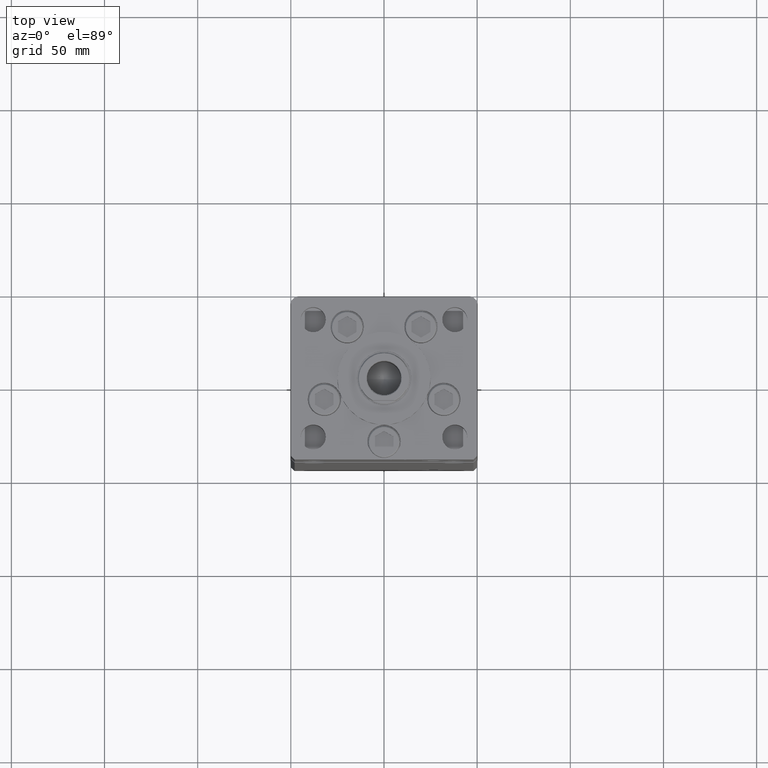
[diagram: clean part render]
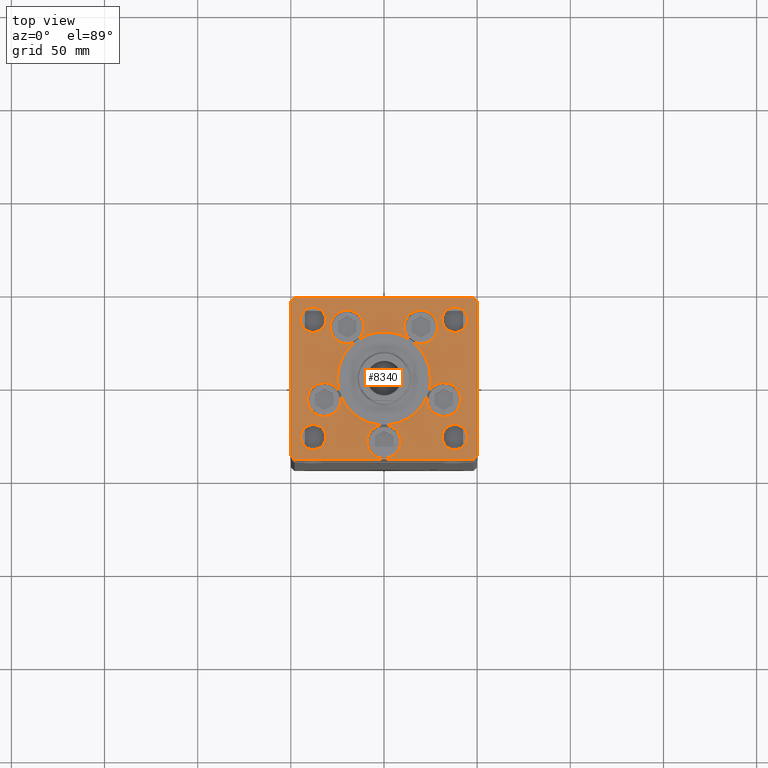
[diagram: same view with one face highlighted and labeled with its STEP entity id]
A machine part, top view. The second image highlights one B-rep face of the part: STEP entity #8340.
In plain terms, the highlighted planar face has unit normal (0, 0, 1).
Its self-contained STEP definition (entity closure, byte-faithful):
#100 = EDGE_LOOP ( 'NONE', ( #22653, #37898 ) ) ;
#194 = EDGE_CURVE ( 'NONE', #29613, #17015, #1800, .T. ) ;
#427 = DIRECTION ( 'NONE',  ( 0.000000000000000000, 0.000000000000000000, 1.000000000000000000 ) ) ;
#525 = EDGE_CURVE ( 'NONE', #50817, #51859, #46321, .T. ) ;
#607 = DIRECTION ( 'NONE',  ( 0.000000000000000000, 0.000000000000000000, 1.000000000000000000 ) ) ;
#753 = CARTESIAN_POINT ( 'NONE',  ( -44.75000000000000000, 31.50000000000000000, 0.000000000000000000 ) ) ;
#755 = EDGE_CURVE ( 'NONE', #39493, #41685, #6091, .T. ) ;
#782 = DIRECTION ( 'NONE',  ( 1.000000000000000000, 0.000000000000000000, 0.000000000000000000 ) ) ;
#893 = CARTESIAN_POINT ( 'NONE',  ( 0.000000000000000000, -6.938893903907228378E-15, 0.000000000000000000 ) ) ;
#1200 = VERTEX_POINT ( 'NONE', #1715 ) ;
#1289 = CARTESIAN_POINT ( 'NONE',  ( 19.82068048781374969, 27.62499999999998934, 0.000000000000000000 ) ) ;
#1462 = CARTESIAN_POINT ( 'NONE',  ( -23.57022603955158502, -8.333333333333332149, 0.000000000000000000 ) ) ;
#1715 = CARTESIAN_POINT ( 'NONE',  ( -44.75000000000000711, -31.50000000000000711, 0.000000000000000000 ) ) ;
#1771 = CARTESIAN_POINT ( 'NONE',  ( -19.82068048781374969, 27.62499999999998934, 0.000000000000000000 ) ) ;
#1800 = CIRCLE ( 'NONE', #12956, 9.000000000000000000 ) ;
#1877 = AXIS2_PLACEMENT_3D ( 'NONE', #42514, #607, #4920 ) ;
#1910 = CARTESIAN_POINT ( 'NONE',  ( -50.00000000000000711, 41.49999999999999289, 0.000000000000000000 ) ) ;
#2034 = VERTEX_POINT ( 'NONE', #1462 ) ;
#2136 = CIRCLE ( 'NONE', #32163, 9.000000000000001776 ) ;
#2151 = FACE_BOUND ( 'NONE', #42752, .T. ) ;
#2329 = EDGE_CURVE ( 'NONE', #22925, #51141, #14722, .T. ) ;
#2330 = CARTESIAN_POINT ( 'NONE',  ( 48.00000000000000711, -43.49999999999992184, 0.000000000000000000 ) ) ;
#2415 = EDGE_CURVE ( 'NONE', #18035, #39297, #30180, .T. ) ;
#2428 = DIRECTION ( 'NONE',  ( -0.000000000000000000, 0.000000000000000000, 1.000000000000000000 ) ) ;
#2433 = VERTEX_POINT ( 'NONE', #30940 ) ;
#2509 = CARTESIAN_POINT ( 'NONE',  ( 0.000000000000000000, -34.00000000000000000, 0.000000000000000000 ) ) ;
#2957 = DIRECTION ( 'NONE',  ( -0.000000000000000000, -0.000000000000000000, -1.000000000000000000 ) ) ;
#2990 = ORIENTED_EDGE ( 'NONE', *, *, #34412, .T. ) ;
#3020 = EDGE_CURVE ( 'NONE', #7996, #1200, #31076, .T. ) ;
#3104 = AXIS2_PLACEMENT_3D ( 'NONE', #32752, #4554, #782 ) ;
#3175 = DIRECTION ( 'NONE',  ( 1.000000000000000000, 0.000000000000000000, 0.000000000000000000 ) ) ;
#3185 = DIRECTION ( 'NONE',  ( 0.000000000000000000, 0.000000000000000000, 1.000000000000000000 ) ) ;
#3480 = CARTESIAN_POINT ( 'NONE',  ( -9.000000000000000000, -34.00000000000000000, 0.000000000000000000 ) ) ;
#3901 = CIRCLE ( 'NONE', #44228, 6.749999999999999112 ) ;
#3945 = DIRECTION ( 'NONE',  ( 1.000000000000000000, 0.000000000000000000, 0.000000000000000000 ) ) ;
#3974 = VERTEX_POINT ( 'NONE', #18096 ) ;
#4045 = VERTEX_POINT ( 'NONE', #39608 ) ;
#4207 = DIRECTION ( 'NONE',  ( 1.000000000000000000, 0.000000000000000000, 0.000000000000000000 ) ) ;
#4213 = CARTESIAN_POINT ( 'NONE',  ( 50.00000000000000000, 41.50000000000000711, 0.000000000000000000 ) ) ;
#4409 = VERTEX_POINT ( 'NONE', #753 ) ;
#4554 = DIRECTION ( 'NONE',  ( 0.000000000000000000, 0.000000000000000000, 1.000000000000000000 ) ) ;
#4718 = EDGE_CURVE ( 'NONE', #13623, #17992, #8780, .T. ) ;
#4781 = ORIENTED_EDGE ( 'NONE', *, *, #194, .F. ) ;
#4821 = DIRECTION ( 'NONE',  ( 0.7071067811865474617, 0.7071067811865474617, 0.000000000000000000 ) ) ;
#4920 = DIRECTION ( 'NONE',  ( 1.000000000000000000, 0.000000000000000000, 0.000000000000000000 ) ) ;
#5015 = CARTESIAN_POINT ( 'NONE',  ( -48.00000000000000000, 43.49999999999997158, 0.000000000000000000 ) ) ;
#5271 = CARTESIAN_POINT ( 'NONE',  ( -38.00000000000000000, 31.50000000000000000, 0.000000000000000000 ) ) ;
#5688 = ORIENTED_EDGE ( 'NONE', *, *, #14396, .T. ) ;
#5796 = EDGE_CURVE ( 'NONE', #12160, #44100, #47460, .T. ) ;
#6091 = CIRCLE ( 'NONE', #40436, 6.749999999999999112 ) ;
#6184 = CARTESIAN_POINT ( 'NONE',  ( 44.75000000000000711, -31.50000000000000711, 0.000000000000000000 ) ) ;
#6359 = EDGE_LOOP ( 'NONE', ( #14574, #19269, #23675, #33432, #38482, #5688, #33665, #2990 ) ) ;
#6574 = EDGE_CURVE ( 'NONE', #39297, #22925, #25113, .T. ) ;
#6714 = DIRECTION ( 'NONE',  ( 0.000000000000000000, 0.000000000000000000, 1.000000000000000000 ) ) ;
#6840 = EDGE_CURVE ( 'NONE', #4045, #18035, #44922, .T. ) ;
#6985 = FACE_BOUND ( 'NONE', #52794, .T. ) ;
#7146 = AXIS2_PLACEMENT_3D ( 'NONE', #21708, #34608, #8838 ) ;
#7182 = DIRECTION ( 'NONE',  ( 1.000000000000000000, 0.000000000000000000, 0.000000000000000000 ) ) ;
#7359 = AXIS2_PLACEMENT_3D ( 'NONE', #2509, #39578, #30978 ) ;
#7493 = CARTESIAN_POINT ( 'NONE',  ( 28.82068048781374969, 27.62499999999998934, 0.000000000000000000 ) ) ;
#7722 = DIRECTION ( 'NONE',  ( 0.000000000000000000, 0.000000000000000000, 1.000000000000000000 ) ) ;
#7822 = DIRECTION ( 'NONE',  ( 0.000000000000000000, 0.000000000000000000, 1.000000000000000000 ) ) ;
#7996 = VERTEX_POINT ( 'NONE', #37487 ) ;
#8340 = ADVANCED_FACE ( 'NONE', ( #10455, #6985, #2151, #23351, #52134, #47289 ), #27407, .T. ) ;
#8569 = LINE ( 'NONE', #8826, #21321 ) ;
#8780 = CIRCLE ( 'NONE', #42267, 9.000000000000001776 ) ;
#8826 = CARTESIAN_POINT ( 'NONE',  ( 48.00000000000000711, -43.49999999999992184, 0.000000000000000000 ) ) ;
#8838 = DIRECTION ( 'NONE',  ( 1.000000000000000000, 0.000000000000000000, 0.000000000000000000 ) ) ;
#8878 = ORIENTED_EDGE ( 'NONE', *, *, #22556, .F. ) ;
#8922 = DIRECTION ( 'NONE',  ( 1.000000000000000000, 0.000000000000000000, 0.000000000000000000 ) ) ;
#9021 = DIRECTION ( 'NONE',  ( -0.7071067811865536790, -0.7071067811865414665, 0.000000000000000000 ) ) ;
#9254 = ORIENTED_EDGE ( 'NONE', *, *, #42782, .F. ) ;
#9491 = DIRECTION ( 'NONE',  ( 1.000000000000000000, 1.156482317317871331E-15, 0.000000000000000000 ) ) ;
#9599 = VECTOR ( 'NONE', #9491, 1000.000000000000000 ) ;
#9808 = DIRECTION ( 'NONE',  ( -1.000000000000000000, 0.000000000000000000, 0.000000000000000000 ) ) ;
#10189 = DIRECTION ( 'NONE',  ( -1.000000000000000000, 0.000000000000000000, 0.000000000000000000 ) ) ;
#10373 = VECTOR ( 'NONE', #17811, 1000.000000000000000 ) ;
#10455 = FACE_BOUND ( 'NONE', #51469, .T. ) ;
#10610 = AXIS2_PLACEMENT_3D ( 'NONE', #15287, #2428, #18795 ) ;
#10856 = CARTESIAN_POINT ( 'NONE',  ( 31.25000000000000000, 31.50000000000000000, 0.000000000000000000 ) ) ;
#10883 = CARTESIAN_POINT ( 'NONE',  ( -50.00000000000000711, 41.49999999999999289, 0.000000000000000000 ) ) ;
#11212 = CARTESIAN_POINT ( 'NONE',  ( 38.00000000000000000, 31.50000000000000000, 0.000000000000000000 ) ) ;
#11332 = AXIS2_PLACEMENT_3D ( 'NONE', #1771, #18676, #22169 ) ;
#11591 = ORIENTED_EDGE ( 'NONE', *, *, #22379, .T. ) ;
#11993 = ORIENTED_EDGE ( 'NONE', *, *, #26660, .T. ) ;
#12160 = VERTEX_POINT ( 'NONE', #47231 ) ;
#12178 = CARTESIAN_POINT ( 'NONE',  ( 50.00000000000000000, 41.50000000000000711, 0.000000000000000000 ) ) ;
#12564 = CARTESIAN_POINT ( 'NONE',  ( -31.25000000000000000, 31.50000000000000000, 0.000000000000000000 ) ) ;
#12591 = CIRCLE ( 'NONE', #46883, 8.999999999999998224 ) ;
#12906 = CARTESIAN_POINT ( 'NONE',  ( 32.05550741379015989, -11.33333333333332860, 0.000000000000000000 ) ) ;
#12956 = AXIS2_PLACEMENT_3D ( 'NONE', #13305, #17592, #4207 ) ;
#13000 = CARTESIAN_POINT ( 'NONE',  ( 50.00000000000000000, -41.49999999999992895, 0.000000000000000000 ) ) ;
#13223 = ORIENTED_EDGE ( 'NONE', *, *, #6840, .F. ) ;
#13293 = CARTESIAN_POINT ( 'NONE',  ( 32.05550741379015989, -11.33333333333332860, 0.000000000000000000 ) ) ;
#13305 = CARTESIAN_POINT ( 'NONE',  ( 0.000000000000000000, -34.00000000000000000, 0.000000000000000000 ) ) ;
#13623 = VERTEX_POINT ( 'NONE', #14832 ) ;
#14396 = EDGE_CURVE ( 'NONE', #36460, #51994, #29658, .T. ) ;
#14472 = EDGE_CURVE ( 'NONE', #40541, #29613, #49405, .T. ) ;
#14537 = DIRECTION ( 'NONE',  ( 1.000000000000000000, 0.000000000000000000, 0.000000000000000000 ) ) ;
#14574 = ORIENTED_EDGE ( 'NONE', *, *, #37649, .T. ) ;
#14722 = CIRCLE ( 'NONE', #48196, 25.00000000000000000 ) ;
#14832 = CARTESIAN_POINT ( 'NONE',  ( 23.05550741379015633, -11.33333333333332682, 0.000000000000000000 ) ) ;
#15127 = AXIS2_PLACEMENT_3D ( 'NONE', #52132, #34638, #51053 ) ;
#15287 = CARTESIAN_POINT ( 'NONE',  ( 0.000000000000000000, 0.000000000000000000, 0.000000000000000000 ) ) ;
#15539 = CARTESIAN_POINT ( 'NONE',  ( 0.000000000000000000, -6.938893903907228378E-15, 0.000000000000000000 ) ) ;
#15717 = VERTEX_POINT ( 'NONE', #1910 ) ;
#15723 = EDGE_CURVE ( 'NONE', #1200, #7996, #40016, .T. ) ;
#15947 = DIRECTION ( 'NONE',  ( 1.000000000000000000, 0.000000000000000000, 0.000000000000000000 ) ) ;
#16008 = CARTESIAN_POINT ( 'NONE',  ( 19.82068048781374969, 27.62499999999998934, 0.000000000000000000 ) ) ;
#16009 = DIRECTION ( 'NONE',  ( -1.000000000000000000, 0.000000000000000000, 0.000000000000000000 ) ) ;
#16607 = CARTESIAN_POINT ( 'NONE',  ( -19.82068048781374969, 27.62499999999998934, 0.000000000000000000 ) ) ;
#16980 = AXIS2_PLACEMENT_3D ( 'NONE', #893, #29649, #26119 ) ;
#16999 = DIRECTION ( 'NONE',  ( -0.7071067811865512365, 0.7071067811865439090, 0.000000000000000000 ) ) ;
#17015 = VERTEX_POINT ( 'NONE', #3480 ) ;
#17150 = CARTESIAN_POINT ( 'NONE',  ( 0.000000000000000000, -6.938893903907228378E-15, 0.000000000000000000 ) ) ;
#17343 = AXIS2_PLACEMENT_3D ( 'NONE', #39388, #43698, #9808 ) ;
#17453 = CIRCLE ( 'NONE', #38919, 9.000000000000001776 ) ;
#17592 = DIRECTION ( 'NONE',  ( 0.000000000000000000, 0.000000000000000000, 1.000000000000000000 ) ) ;
#17658 = DIRECTION ( 'NONE',  ( 0.000000000000000000, 0.000000000000000000, 1.000000000000000000 ) ) ;
#17763 = DIRECTION ( 'NONE',  ( 0.000000000000000000, 0.000000000000000000, 1.000000000000000000 ) ) ;
#17811 = DIRECTION ( 'NONE',  ( 0.000000000000000000, 1.000000000000000000, 0.000000000000000000 ) ) ;
#17992 = VERTEX_POINT ( 'NONE', #28387 ) ;
#18003 = ORIENTED_EDGE ( 'NONE', *, *, #37015, .F. ) ;
#18035 = VERTEX_POINT ( 'NONE', #29458 ) ;
#18096 = CARTESIAN_POINT ( 'NONE',  ( -50.00000000000000000, -41.50000000000004263, 0.000000000000000000 ) ) ;
#18676 = DIRECTION ( 'NONE',  ( 0.000000000000000000, 0.000000000000000000, 1.000000000000000000 ) ) ;
#18795 = DIRECTION ( 'NONE',  ( 1.000000000000000000, 0.000000000000000000, 0.000000000000000000 ) ) ;
#18872 = VERTEX_POINT ( 'NONE', #12564 ) ;
#19194 = CARTESIAN_POINT ( 'NONE',  ( 32.05550741379015989, -11.33333333333332860, 0.000000000000000000 ) ) ;
#19269 = ORIENTED_EDGE ( 'NONE', *, *, #23333, .T. ) ;
#19280 = ORIENTED_EDGE ( 'NONE', *, *, #38373, .F. ) ;
#19547 = DIRECTION ( 'NONE',  ( 1.000000000000000000, 0.000000000000000000, 0.000000000000000000 ) ) ;
#20054 = ORIENTED_EDGE ( 'NONE', *, *, #35448, .T. ) ;
#21041 = CARTESIAN_POINT ( 'NONE',  ( 47.99999999999999289, 43.50000000000000000, 0.000000000000000000 ) ) ;
#21090 = CIRCLE ( 'NONE', #15127, 9.000000000000001776 ) ;
#21271 = CARTESIAN_POINT ( 'NONE',  ( 9.000000000000000000, -34.00000000000000000, 0.000000000000000000 ) ) ;
#21321 = VECTOR ( 'NONE', #4821, 1000.000000000000114 ) ;
#21360 = DIRECTION ( 'NONE',  ( 1.000000000000000000, 0.000000000000000000, 0.000000000000000000 ) ) ;
#21549 = CARTESIAN_POINT ( 'NONE',  ( 10.82068048781375147, 27.62499999999998934, 0.000000000000000000 ) ) ;
#21636 = AXIS2_PLACEMENT_3D ( 'NONE', #24355, #7722, #32170 ) ;
#21708 = CARTESIAN_POINT ( 'NONE',  ( 0.000000000000000000, -6.938893903907228378E-15, 0.000000000000000000 ) ) ;
#21927 = CIRCLE ( 'NONE', #24510, 25.00000000000000000 ) ;
#22051 = CARTESIAN_POINT ( 'NONE',  ( 0.000000000000000000, -6.938893903907228378E-15, 0.000000000000000000 ) ) ;
#22142 = EDGE_CURVE ( 'NONE', #41685, #39493, #42258, .T. ) ;
#22169 = DIRECTION ( 'NONE',  ( 1.000000000000000000, 0.000000000000000000, 0.000000000000000000 ) ) ;
#22203 = EDGE_CURVE ( 'NONE', #44100, #22925, #41390, .T. ) ;
#22379 = EDGE_CURVE ( 'NONE', #44547, #26493, #25056, .T. ) ;
#22556 = EDGE_CURVE ( 'NONE', #22925, #12160, #24210, .T. ) ;
#22653 = ORIENTED_EDGE ( 'NONE', *, *, #3020, .F. ) ;
#22712 = VECTOR ( 'NONE', #22959, 1000.000000000000000 ) ;
#22925 = VERTEX_POINT ( 'NONE', #28536 ) ;
#22959 = DIRECTION ( 'NONE',  ( 8.360113137237620037E-17, -1.000000000000000000, 0.000000000000000000 ) ) ;
#23333 = EDGE_CURVE ( 'NONE', #31470, #30495, #37994, .T. ) ;
#23351 = FACE_BOUND ( 'NONE', #100, .T. ) ;
#23675 = ORIENTED_EDGE ( 'NONE', *, *, #46310, .T. ) ;
#23776 = AXIS2_PLACEMENT_3D ( 'NONE', #36448, #52853, #16009 ) ;
#23829 = CIRCLE ( 'NONE', #45285, 8.999999999999998224 ) ;
#24122 = CARTESIAN_POINT ( 'NONE',  ( -50.00000000000000000, -41.50000000000004263, 0.000000000000000000 ) ) ;
#24210 = CIRCLE ( 'NONE', #11332, 9.000000000000000000 ) ;
#24355 = CARTESIAN_POINT ( 'NONE',  ( -19.82068048781374969, 27.62499999999998934, 0.000000000000000000 ) ) ;
#24510 = AXIS2_PLACEMENT_3D ( 'NONE', #17150, #44612, #36796 ) ;
#24650 = LINE ( 'NONE', #24122, #45978 ) ;
#25056 = CIRCLE ( 'NONE', #17343, 6.749999999999999112 ) ;
#25113 = CIRCLE ( 'NONE', #7146, 25.00000000000000000 ) ;
#25136 = DIRECTION ( 'NONE',  ( 0.000000000000000000, 0.000000000000000000, 1.000000000000000000 ) ) ;
#25465 = CIRCLE ( 'NONE', #23776, 6.749999999999999112 ) ;
#25556 = CIRCLE ( 'NONE', #16980, 25.00000000000000000 ) ;
#25617 = ORIENTED_EDGE ( 'NONE', *, *, #25841, .F. ) ;
#25841 = EDGE_CURVE ( 'NONE', #2433, #2034, #32882, .T. ) ;
#25856 = EDGE_CURVE ( 'NONE', #39297, #37694, #38872, .T. ) ;
#25871 = DIRECTION ( 'NONE',  ( -1.000000000000000000, -2.891205793294678326E-16, 0.000000000000000000 ) ) ;
#25916 = DIRECTION ( 'NONE',  ( 0.000000000000000000, 0.000000000000000000, 1.000000000000000000 ) ) ;
#25936 = DIRECTION ( 'NONE',  ( -0.000000000000000000, -0.000000000000000000, -1.000000000000000000 ) ) ;
#25996 = VERTEX_POINT ( 'NONE', #39088 ) ;
#26080 = VERTEX_POINT ( 'NONE', #21549 ) ;
#26119 = DIRECTION ( 'NONE',  ( 1.000000000000000000, 0.000000000000000000, 0.000000000000000000 ) ) ;
#26493 = VERTEX_POINT ( 'NONE', #6184 ) ;
#26539 = ORIENTED_EDGE ( 'NONE', *, *, #4718, .F. ) ;
#26660 = EDGE_CURVE ( 'NONE', #18872, #4409, #32054, .T. ) ;
#26908 = EDGE_CURVE ( 'NONE', #4045, #13623, #17453, .T. ) ;
#27407 = PLANE ( 'NONE',  #10610 ) ;
#27634 = CARTESIAN_POINT ( 'NONE',  ( 38.00000000000000000, 31.50000000000000000, 0.000000000000000000 ) ) ;
#28355 = CARTESIAN_POINT ( 'NONE',  ( 31.25000000000000711, -31.50000000000000711, 0.000000000000000000 ) ) ;
#28387 = CARTESIAN_POINT ( 'NONE',  ( 41.05550741379015989, -11.33333333333332860, 0.000000000000000000 ) ) ;
#28536 = CARTESIAN_POINT ( 'NONE',  ( -14.57402977045128978, 20.31249999999999289, 0.000000000000000000 ) ) ;
#28944 = AXIS2_PLACEMENT_3D ( 'NONE', #15539, #6714, #39491 ) ;
#29182 = CARTESIAN_POINT ( 'NONE',  ( 19.82068048781374969, 27.62499999999998934, 0.000000000000000000 ) ) ;
#29310 = DIRECTION ( 'NONE',  ( 1.000000000000000000, 0.000000000000000000, 0.000000000000000000 ) ) ;
#29385 = ORIENTED_EDGE ( 'NONE', *, *, #45216, .F. ) ;
#29458 = CARTESIAN_POINT ( 'NONE',  ( 25.00000000000000000, -3.877276906038844941E-15, 0.000000000000000000 ) ) ;
#29613 = VERTEX_POINT ( 'NONE', #34442 ) ;
#29649 = DIRECTION ( 'NONE',  ( 0.000000000000000000, 0.000000000000000000, 1.000000000000000000 ) ) ;
#29658 = LINE ( 'NONE', #21041, #51124 ) ;
#29720 = CARTESIAN_POINT ( 'NONE',  ( -48.00000000000000000, 43.49999999999997158, 0.000000000000000000 ) ) ;
#30180 = CIRCLE ( 'NONE', #31877, 25.00000000000000000 ) ;
#30240 = LINE ( 'NONE', #29720, #49439 ) ;
#30416 = ORIENTED_EDGE ( 'NONE', *, *, #6574, .F. ) ;
#30495 = VERTEX_POINT ( 'NONE', #2330 ) ;
#30940 = CARTESIAN_POINT ( 'NONE',  ( -23.05550741379015633, -11.33333333333332860, 0.000000000000000000 ) ) ;
#30978 = DIRECTION ( 'NONE',  ( 1.000000000000000000, 0.000000000000000000, 0.000000000000000000 ) ) ;
#31049 = ORIENTED_EDGE ( 'NONE', *, *, #5796, .F. ) ;
#31076 = CIRCLE ( 'NONE', #1877, 6.749999999999999112 ) ;
#31218 = CARTESIAN_POINT ( 'NONE',  ( 0.000000000000000000, -6.938893903907228378E-15, 0.000000000000000000 ) ) ;
#31381 = CARTESIAN_POINT ( 'NONE',  ( 44.75000000000000000, 31.50000000000000000, 0.000000000000000000 ) ) ;
#31438 = CARTESIAN_POINT ( 'NONE',  ( -38.00000000000000000, 31.50000000000000000, 0.000000000000000000 ) ) ;
#31470 = VERTEX_POINT ( 'NONE', #49056 ) ;
#31490 = ORIENTED_EDGE ( 'NONE', *, *, #755, .F. ) ;
#31808 = ORIENTED_EDGE ( 'NONE', *, *, #2329, .F. ) ;
#31877 = AXIS2_PLACEMENT_3D ( 'NONE', #31218, #34965, #14537 ) ;
#31879 = CARTESIAN_POINT ( 'NONE',  ( 0.000000000000000000, -34.00000000000000000, 0.000000000000000000 ) ) ;
#32019 = AXIS2_PLACEMENT_3D ( 'NONE', #45571, #427, #21360 ) ;
#32054 = CIRCLE ( 'NONE', #47528, 6.749999999999999112 ) ;
#32163 = AXIS2_PLACEMENT_3D ( 'NONE', #12906, #7822, #29310 ) ;
#32170 = DIRECTION ( 'NONE',  ( 1.000000000000000000, 0.000000000000000000, 0.000000000000000000 ) ) ;
#32181 = DIRECTION ( 'NONE',  ( 0.000000000000000000, 0.000000000000000000, 1.000000000000000000 ) ) ;
#32201 = DIRECTION ( 'NONE',  ( 0.7071067811865487940, -0.7071067811865463515, 0.000000000000000000 ) ) ;
#32286 = AXIS2_PLACEMENT_3D ( 'NONE', #42766, #34674, #38712 ) ;
#32592 = ORIENTED_EDGE ( 'NONE', *, *, #37013, .F. ) ;
#32683 = DIRECTION ( 'NONE',  ( 0.000000000000000000, 0.000000000000000000, 1.000000000000000000 ) ) ;
#32752 = CARTESIAN_POINT ( 'NONE',  ( -32.05550741379015989, -11.33333333333332860, 0.000000000000000000 ) ) ;
#32882 = CIRCLE ( 'NONE', #32019, 9.000000000000001776 ) ;
#32894 = AXIS2_PLACEMENT_3D ( 'NONE', #40781, #32181, #36474 ) ;
#32928 = DIRECTION ( 'NONE',  ( 1.000000000000000000, 0.000000000000000000, 0.000000000000000000 ) ) ;
#33193 = DIRECTION ( 'NONE',  ( 1.000000000000000000, 0.000000000000000000, 0.000000000000000000 ) ) ;
#33432 = ORIENTED_EDGE ( 'NONE', *, *, #525, .T. ) ;
#33665 = ORIENTED_EDGE ( 'NONE', *, *, #36552, .T. ) ;
#33769 = EDGE_CURVE ( 'NONE', #51859, #36460, #41755, .T. ) ;
#34165 = AXIS2_PLACEMENT_3D ( 'NONE', #31879, #35112, #51518 ) ;
#34412 = EDGE_CURVE ( 'NONE', #15717, #3974, #47441, .T. ) ;
#34442 = CARTESIAN_POINT ( 'NONE',  ( 0.000000000000000000, -25.00000000000000000, 0.000000000000000000 ) ) ;
#34608 = DIRECTION ( 'NONE',  ( 0.000000000000000000, 0.000000000000000000, 1.000000000000000000 ) ) ;
#34638 = DIRECTION ( 'NONE',  ( 0.000000000000000000, 0.000000000000000000, 1.000000000000000000 ) ) ;
#34674 = DIRECTION ( 'NONE',  ( 0.000000000000000000, 0.000000000000000000, 1.000000000000000000 ) ) ;
#34965 = DIRECTION ( 'NONE',  ( 0.000000000000000000, 0.000000000000000000, 1.000000000000000000 ) ) ;
#35112 = DIRECTION ( 'NONE',  ( 0.000000000000000000, 0.000000000000000000, 1.000000000000000000 ) ) ;
#35151 = EDGE_CURVE ( 'NONE', #17992, #4045, #2136, .T. ) ;
#35448 = EDGE_CURVE ( 'NONE', #4409, #18872, #3901, .T. ) ;
#36448 = CARTESIAN_POINT ( 'NONE',  ( 38.00000000000000711, -31.50000000000000711, 0.000000000000000000 ) ) ;
#36460 = VERTEX_POINT ( 'NONE', #39445 ) ;
#36474 = DIRECTION ( 'NONE',  ( 1.000000000000000000, 0.000000000000000000, 0.000000000000000000 ) ) ;
#36524 = DIRECTION ( 'NONE',  ( -1.000000000000000000, 0.000000000000000000, 0.000000000000000000 ) ) ;
#36552 = EDGE_CURVE ( 'NONE', #51994, #15717, #30240, .T. ) ;
#36794 = DIRECTION ( 'NONE',  ( 1.000000000000000000, 0.000000000000000000, 0.000000000000000000 ) ) ;
#36796 = DIRECTION ( 'NONE',  ( 1.000000000000000000, 0.000000000000000000, 0.000000000000000000 ) ) ;
#36859 = ORIENTED_EDGE ( 'NONE', *, *, #35151, .F. ) ;
#37013 = EDGE_CURVE ( 'NONE', #2034, #25996, #47717, .T. ) ;
#37015 = EDGE_CURVE ( 'NONE', #29613, #4045, #21927, .T. ) ;
#37052 = ORIENTED_EDGE ( 'NONE', *, *, #41084, .F. ) ;
#37487 = CARTESIAN_POINT ( 'NONE',  ( -31.25000000000000711, -31.50000000000000711, 0.000000000000000000 ) ) ;
#37649 = EDGE_CURVE ( 'NONE', #3974, #31470, #24650, .T. ) ;
#37694 = VERTEX_POINT ( 'NONE', #7493 ) ;
#37898 = ORIENTED_EDGE ( 'NONE', *, *, #15723, .F. ) ;
#37994 = LINE ( 'NONE', #46329, #9599 ) ;
#38008 = AXIS2_PLACEMENT_3D ( 'NONE', #16607, #44868, #36794 ) ;
#38321 = ORIENTED_EDGE ( 'NONE', *, *, #39660, .F. ) ;
#38373 = EDGE_CURVE ( 'NONE', #25996, #2433, #21090, .T. ) ;
#38482 = ORIENTED_EDGE ( 'NONE', *, *, #33769, .T. ) ;
#38712 = DIRECTION ( 'NONE',  ( 1.000000000000000000, 0.000000000000000000, 0.000000000000000000 ) ) ;
#38872 = CIRCLE ( 'NONE', #47484, 8.999999999999998224 ) ;
#38919 = AXIS2_PLACEMENT_3D ( 'NONE', #19194, #52788, #15947 ) ;
#39028 = ORIENTED_EDGE ( 'NONE', *, *, #14472, .F. ) ;
#39088 = CARTESIAN_POINT ( 'NONE',  ( -41.05550741379015989, -11.33333333333332682, 0.000000000000000000 ) ) ;
#39297 = VERTEX_POINT ( 'NONE', #40557 ) ;
#39388 = CARTESIAN_POINT ( 'NONE',  ( 38.00000000000000711, -31.50000000000000711, 0.000000000000000000 ) ) ;
#39445 = CARTESIAN_POINT ( 'NONE',  ( 47.99999999999999289, 43.50000000000000000, 0.000000000000000000 ) ) ;
#39491 = DIRECTION ( 'NONE',  ( 1.000000000000000000, 0.000000000000000000, 0.000000000000000000 ) ) ;
#39493 = VERTEX_POINT ( 'NONE', #31381 ) ;
#39578 = DIRECTION ( 'NONE',  ( 0.000000000000000000, 0.000000000000000000, 1.000000000000000000 ) ) ;
#39608 = CARTESIAN_POINT ( 'NONE',  ( 23.57022603955158502, -8.333333333333332149, 0.000000000000000000 ) ) ;
#39660 = EDGE_CURVE ( 'NONE', #37694, #26080, #12591, .T. ) ;
#40016 = CIRCLE ( 'NONE', #32286, 6.749999999999999112 ) ;
#40436 = AXIS2_PLACEMENT_3D ( 'NONE', #27634, #3185, #19547 ) ;
#40541 = VERTEX_POINT ( 'NONE', #21271 ) ;
#40557 = CARTESIAN_POINT ( 'NONE',  ( 14.57402977045128623, 20.31249999999998579, 0.000000000000000000 ) ) ;
#40781 = CARTESIAN_POINT ( 'NONE',  ( 0.000000000000000000, -6.938893903907228378E-15, 0.000000000000000000 ) ) ;
#41084 = EDGE_CURVE ( 'NONE', #51141, #2034, #41802, .T. ) ;
#41390 = CIRCLE ( 'NONE', #21636, 9.000000000000000000 ) ;
#41515 = CARTESIAN_POINT ( 'NONE',  ( -25.00000000000000000, -6.938893903907228378E-15, 0.000000000000000000 ) ) ;
#41685 = VERTEX_POINT ( 'NONE', #10856 ) ;
#41755 = LINE ( 'NONE', #12178, #48448 ) ;
#41802 = CIRCLE ( 'NONE', #28944, 25.00000000000000000 ) ;
#41908 = ORIENTED_EDGE ( 'NONE', *, *, #26908, .F. ) ;
#42254 = EDGE_CURVE ( 'NONE', #26080, #39297, #23829, .T. ) ;
#42258 = CIRCLE ( 'NONE', #46516, 6.749999999999999112 ) ;
#42267 = AXIS2_PLACEMENT_3D ( 'NONE', #13293, #25916, #33193 ) ;
#42418 = ORIENTED_EDGE ( 'NONE', *, *, #42254, .F. ) ;
#42514 = CARTESIAN_POINT ( 'NONE',  ( -38.00000000000000711, -31.50000000000000711, 0.000000000000000000 ) ) ;
#42694 = EDGE_LOOP ( 'NONE', ( #45065, #11591 ) ) ;
#42752 = EDGE_LOOP ( 'NONE', ( #31490, #51536 ) ) ;
#42766 = CARTESIAN_POINT ( 'NONE',  ( -38.00000000000000711, -31.50000000000000711, 0.000000000000000000 ) ) ;
#42782 = EDGE_CURVE ( 'NONE', #2034, #29613, #25556, .T. ) ;
#43698 = DIRECTION ( 'NONE',  ( -0.000000000000000000, -0.000000000000000000, -1.000000000000000000 ) ) ;
#44100 = VERTEX_POINT ( 'NONE', #45686 ) ;
#44228 = AXIS2_PLACEMENT_3D ( 'NONE', #31438, #2957, #10189 ) ;
#44547 = VERTEX_POINT ( 'NONE', #28355 ) ;
#44595 = ORIENTED_EDGE ( 'NONE', *, *, #25856, .F. ) ;
#44612 = DIRECTION ( 'NONE',  ( 0.000000000000000000, 0.000000000000000000, 1.000000000000000000 ) ) ;
#44790 = DIRECTION ( 'NONE',  ( 0.000000000000000000, 0.000000000000000000, 1.000000000000000000 ) ) ;
#44868 = DIRECTION ( 'NONE',  ( 0.000000000000000000, 0.000000000000000000, 1.000000000000000000 ) ) ;
#44922 = CIRCLE ( 'NONE', #32894, 25.00000000000000000 ) ;
#45065 = ORIENTED_EDGE ( 'NONE', *, *, #51925, .T. ) ;
#45216 = EDGE_CURVE ( 'NONE', #17015, #40541, #50506, .T. ) ;
#45285 = AXIS2_PLACEMENT_3D ( 'NONE', #1289, #17658, #7182 ) ;
#45314 = ORIENTED_EDGE ( 'NONE', *, *, #2415, .F. ) ;
#45571 = CARTESIAN_POINT ( 'NONE',  ( -32.05550741379015989, -11.33333333333332860, 0.000000000000000000 ) ) ;
#45686 = CARTESIAN_POINT ( 'NONE',  ( -28.82068048781374969, 27.62499999999998934, 0.000000000000000000 ) ) ;
#45978 = VECTOR ( 'NONE', #32201, 1000.000000000000000 ) ;
#46310 = EDGE_CURVE ( 'NONE', #30495, #50817, #8569, .T. ) ;
#46321 = LINE ( 'NONE', #13000, #10373 ) ;
#46329 = CARTESIAN_POINT ( 'NONE',  ( -48.00000000000000711, -43.50000000000002842, 0.000000000000000000 ) ) ;
#46516 = AXIS2_PLACEMENT_3D ( 'NONE', #11212, #32683, #3175 ) ;
#46883 = AXIS2_PLACEMENT_3D ( 'NONE', #16008, #44790, #3945 ) ;
#47231 = CARTESIAN_POINT ( 'NONE',  ( -10.82068048781375147, 27.62499999999998934, 0.000000000000000000 ) ) ;
#47289 = FACE_BOUND ( 'NONE', #42694, .T. ) ;
#47441 = LINE ( 'NONE', #10883, #22712 ) ;
#47460 = CIRCLE ( 'NONE', #38008, 9.000000000000000000 ) ;
#47484 = AXIS2_PLACEMENT_3D ( 'NONE', #29182, #25136, #32928 ) ;
#47528 = AXIS2_PLACEMENT_3D ( 'NONE', #5271, #25936, #36524 ) ;
#47717 = CIRCLE ( 'NONE', #3104, 9.000000000000001776 ) ;
#48196 = AXIS2_PLACEMENT_3D ( 'NONE', #22051, #17763, #8922 ) ;
#48448 = VECTOR ( 'NONE', #16999, 999.9999999999998863 ) ;
#49056 = CARTESIAN_POINT ( 'NONE',  ( -48.00000000000000711, -43.50000000000002842, 0.000000000000000000 ) ) ;
#49405 = CIRCLE ( 'NONE', #7359, 9.000000000000000000 ) ;
#49439 = VECTOR ( 'NONE', #9021, 1000.000000000000000 ) ;
#50506 = CIRCLE ( 'NONE', #34165, 9.000000000000000000 ) ;
#50817 = VERTEX_POINT ( 'NONE', #53141 ) ;
#51053 = DIRECTION ( 'NONE',  ( 1.000000000000000000, 0.000000000000000000, 0.000000000000000000 ) ) ;
#51124 = VECTOR ( 'NONE', #25871, 1000.000000000000000 ) ;
#51141 = VERTEX_POINT ( 'NONE', #41515 ) ;
#51240 = ORIENTED_EDGE ( 'NONE', *, *, #22203, .F. ) ;
#51469 = EDGE_LOOP ( 'NONE', ( #30416, #42418, #38321, #44595, #45314, #13223, #36859, #26539, #41908, #18003, #39028, #29385, #4781, #9254, #25617, #19280, #32592, #37052, #31808, #51240, #31049, #8878 ) ) ;
#51518 = DIRECTION ( 'NONE',  ( 1.000000000000000000, 0.000000000000000000, 0.000000000000000000 ) ) ;
#51536 = ORIENTED_EDGE ( 'NONE', *, *, #22142, .F. ) ;
#51859 = VERTEX_POINT ( 'NONE', #4213 ) ;
#51925 = EDGE_CURVE ( 'NONE', #26493, #44547, #25465, .T. ) ;
#51994 = VERTEX_POINT ( 'NONE', #5015 ) ;
#52132 = CARTESIAN_POINT ( 'NONE',  ( -32.05550741379015989, -11.33333333333332860, 0.000000000000000000 ) ) ;
#52134 = FACE_OUTER_BOUND ( 'NONE', #6359, .T. ) ;
#52788 = DIRECTION ( 'NONE',  ( 0.000000000000000000, 0.000000000000000000, 1.000000000000000000 ) ) ;
#52794 = EDGE_LOOP ( 'NONE', ( #11993, #20054 ) ) ;
#52853 = DIRECTION ( 'NONE',  ( -0.000000000000000000, -0.000000000000000000, -1.000000000000000000 ) ) ;
#53141 = CARTESIAN_POINT ( 'NONE',  ( 50.00000000000000000, -41.49999999999992895, 0.000000000000000000 ) ) ;